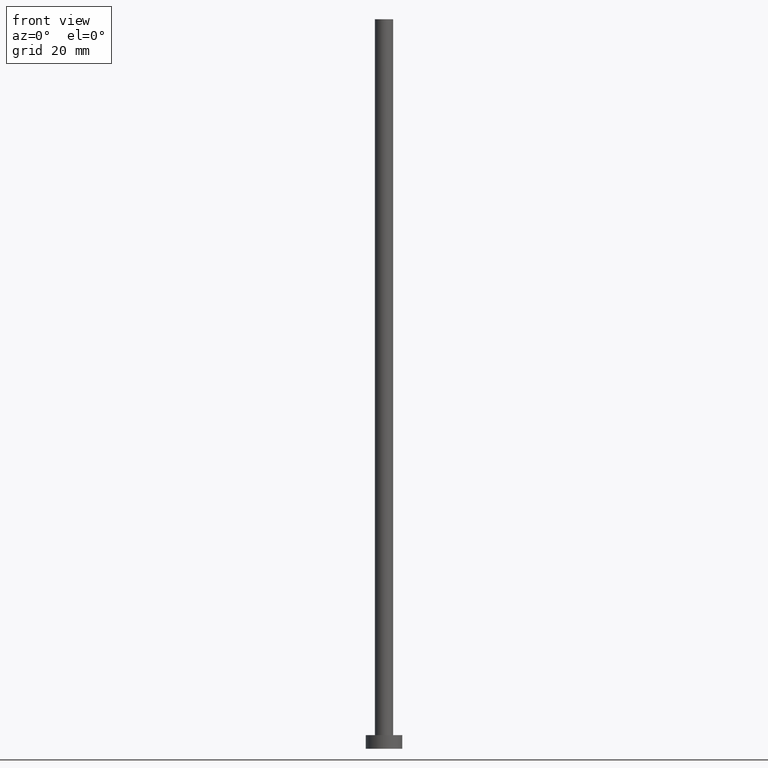
[diagram: clean part render]
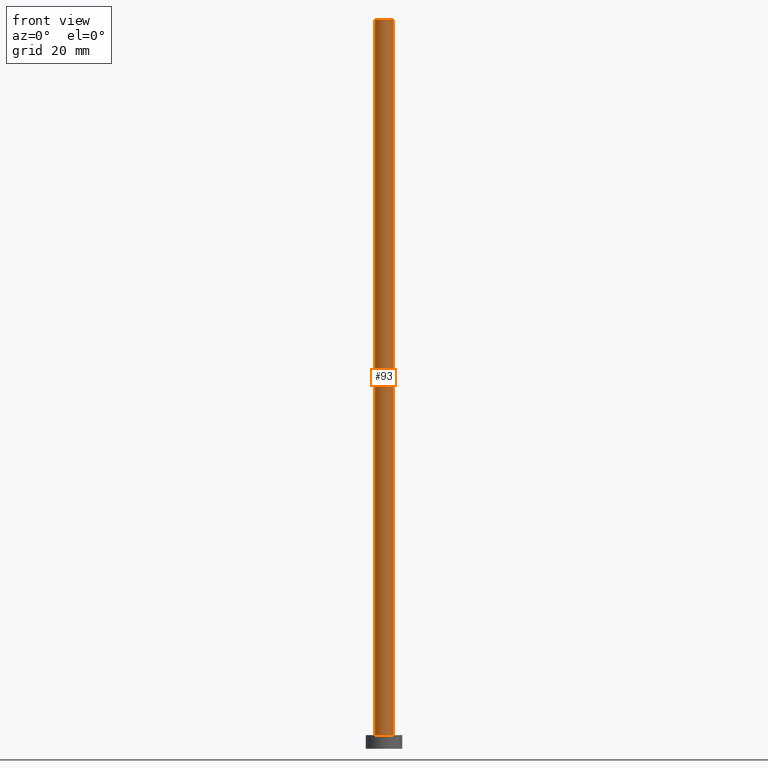
[diagram: same view with one face highlighted and labeled with its STEP entity id]
A machine part, front view. The second image highlights one B-rep face of the part: STEP entity #93.
In plain terms, the highlighted cylindrical surface (edge-blend (fillet) strip) has radius 2 mm, axis along (-0, -0, -1).
Its self-contained STEP definition (entity closure, byte-faithful):
#6 = CIRCLE ( 'NONE', #169, 2.000000000000000000 ) ;
#9 = LINE ( 'NONE', #159, #126 ) ;
#13 = AXIS2_PLACEMENT_3D ( 'NONE', #164, #202, #67 ) ;
#22 = ORIENTED_EDGE ( 'NONE', *, *, #36, .T. ) ;
#29 = EDGE_LOOP ( 'NONE', ( #192, #189, #196, #22 ) ) ;
#36 = EDGE_CURVE ( 'NONE', #175, #119, #6, .T. ) ;
#40 = DIRECTION ( 'NONE',  ( -0.000000000000000000, -0.000000000000000000, -1.000000000000000000 ) ) ;
#48 = CYLINDRICAL_SURFACE ( 'NONE', #94, 2.000000000000000000 ) ;
#67 = DIRECTION ( 'NONE',  ( 1.000000000000000000, 0.000000000000000000, 0.000000000000000000 ) ) ;
#73 = CARTESIAN_POINT ( 'NONE',  ( 2.000000000000000000, 2.449293598294706414E-16, 160.0000000000000000 ) ) ;
#85 = EDGE_CURVE ( 'NONE', #252, #249, #210, .T. ) ;
#92 = CARTESIAN_POINT ( 'NONE',  ( -2.000000000000000000, 0.000000000000000000, 160.0000000000000000 ) ) ;
#93 = ADVANCED_FACE ( 'NONE', ( #242 ), #48, .T. ) ;
#94 = AXIS2_PLACEMENT_3D ( 'NONE', #214, #40, #133 ) ;
#119 = VERTEX_POINT ( 'NONE', #229 ) ;
#124 = DIRECTION ( 'NONE',  ( 1.000000000000000000, 0.000000000000000000, 0.000000000000000000 ) ) ;
#126 = VECTOR ( 'NONE', #219, 1000.000000000000000 ) ;
#129 = EDGE_CURVE ( 'NONE', #249, #119, #194, .T. ) ;
#133 = DIRECTION ( 'NONE',  ( -1.000000000000000000, 0.000000000000000000, 0.000000000000000000 ) ) ;
#139 = CARTESIAN_POINT ( 'NONE',  ( 0.000000000000000000, 0.000000000000000000, 3.000000000000000000 ) ) ;
#157 = CARTESIAN_POINT ( 'NONE',  ( 2.000000000000000000, 2.449293598294706414E-16, 160.0000000000000000 ) ) ;
#159 = CARTESIAN_POINT ( 'NONE',  ( -2.000000000000000000, 0.000000000000000000, 160.0000000000000000 ) ) ;
#164 = CARTESIAN_POINT ( 'NONE',  ( 0.000000000000000000, 0.000000000000000000, 160.0000000000000000 ) ) ;
#169 = AXIS2_PLACEMENT_3D ( 'NONE', #139, #218, #124 ) ;
#175 = VERTEX_POINT ( 'NONE', #176 ) ;
#176 = CARTESIAN_POINT ( 'NONE',  ( -2.000000000000000000, 0.000000000000000000, 3.000000000000000000 ) ) ;
#189 = ORIENTED_EDGE ( 'NONE', *, *, #85, .F. ) ;
#192 = ORIENTED_EDGE ( 'NONE', *, *, #129, .F. ) ;
#194 = LINE ( 'NONE', #73, #236 ) ;
#196 = ORIENTED_EDGE ( 'NONE', *, *, #222, .T. ) ;
#202 = DIRECTION ( 'NONE',  ( 0.000000000000000000, 0.000000000000000000, 1.000000000000000000 ) ) ;
#210 = CIRCLE ( 'NONE', #13, 2.000000000000000000 ) ;
#214 = CARTESIAN_POINT ( 'NONE',  ( 0.000000000000000000, 0.000000000000000000, 160.0000000000000000 ) ) ;
#218 = DIRECTION ( 'NONE',  ( 0.000000000000000000, 0.000000000000000000, 1.000000000000000000 ) ) ;
#219 = DIRECTION ( 'NONE',  ( -0.000000000000000000, -0.000000000000000000, -1.000000000000000000 ) ) ;
#222 = EDGE_CURVE ( 'NONE', #252, #175, #9, .T. ) ;
#229 = CARTESIAN_POINT ( 'NONE',  ( 2.000000000000000000, 2.449293598294706414E-16, 3.000000000000000000 ) ) ;
#236 = VECTOR ( 'NONE', #248, 1000.000000000000000 ) ;
#242 = FACE_OUTER_BOUND ( 'NONE', #29, .T. ) ;
#248 = DIRECTION ( 'NONE',  ( -0.000000000000000000, -0.000000000000000000, -1.000000000000000000 ) ) ;
#249 = VERTEX_POINT ( 'NONE', #157 ) ;
#252 = VERTEX_POINT ( 'NONE', #92 ) ;